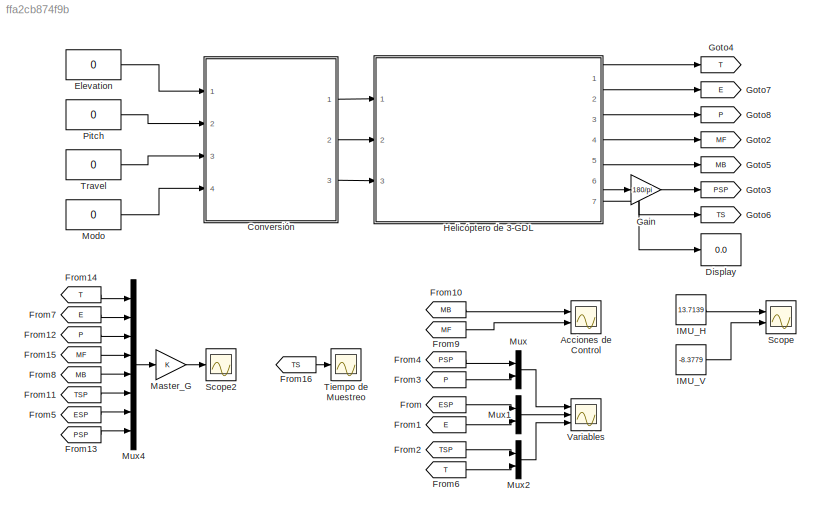
MODEL slx_ffa2cb874f9b
KIND model
CONFIG AbsTol = auto
CONFIG EnableMultiTasking = off
CONFIG FixedStep = 0.009
CONFIG MaxStep = 0.01
CONFIG MinStep = auto
CONFIG RelTol = 1e-3
CONFIG SampleTimeConstraint = Unconstrained
CONFIG SolverName = ode1
CONFIG StartTime = 0.0
CONFIG StopTime = inf
BLOCK [Scope] Acciones de Control
  Floating = off
  NumInputPorts = 2
  Ports = [2]
  ScopeSpecificationString = Simulink.scopes.TimeScopeBlockCfg('CurrentConfiguration', extmgr.ConfigurationSet(extmgr.Configuration('Core','General UI',true),extmgr.Configuration('Core','Source UI',true),extmgr.Configuration('Sources','WiredSimulink',true,'DataLoggingVariableName','CTRL_Actions','DataLogging',true,'DataLoggingSaveFormat','StructureWithTime'),extmgr.Configuration('Visuals','Time Domain',true,'SerializedDisplay...<+1926ch>
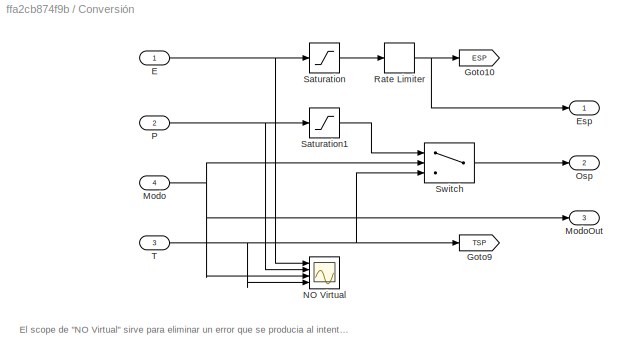
BLOCK [SubSystem] Conversión
  Ports = [4, 3]
  RequestExecContextInheritance = off
BLOCK [Inport] Conversión/E
BLOCK [Outport] Conversión/Esp
BLOCK [Goto] Conversión/Goto10
  GotoTag = ESP
  TagVisibility = global
BLOCK [Goto] Conversión/Goto9
  GotoTag = TSP
  TagVisibility = global
BLOCK [Inport] Conversión/Modo
  Port = 4
BLOCK [Outport] Conversión/ModoOut
  Port = 3
BLOCK [Scope] Conversión/NO Virtual
  Floating = off
  NumInputPorts = 4
  Ports = [4]
  ScopeSpecificationString = Simulink.scopes.TimeScopeBlockCfg('CurrentConfiguration', extmgr.ConfigurationSet(extmgr.Configuration('Core','General UI',true),extmgr.Configuration('Core','Source UI',true),extmgr.Configuration('Sources','WiredSimulink',true,'DataLoggingVariableName','ScopeData1'),extmgr.Configuration('Visuals','Time Domain',true,'SerializedDisplays',{struct('MinYLimReal','-1.00000','MaxYLimReal','1.00000','YLab...<+1560ch>
BLOCK [Outport] Conversión/Osp
  Port = 2
BLOCK [Inport] Conversión/P
  Port = 2
BLOCK [RateLimiter] Conversión/Rate Limiter
  FallingSlewLimit = -8
  RisingSlewLimit = 8
  SampleTimeMode = inherited
BLOCK [Saturate] Conversión/Saturation
  LowerLimit = -28.35
  UpperLimit = 30
BLOCK [Saturate] Conversión/Saturation1
  LowerLimit = -20
  UpperLimit = 20
BLOCK [Switch] Conversión/Switch
  Criteria = u2 ~= 0
  InputSameDT = off
  SaturateOnIntegerOverflow = off
BLOCK [Inport] Conversión/T
  Port = 3
BLOCK [Display] Display
  Decimation = 1
  Ports = [1]
BLOCK [Constant] Elevation
  Value = 0
BLOCK [From] From
  GotoTag = ESP
  TagVisibility = global
BLOCK [From] From1
  GotoTag = E
BLOCK [From] From10
  GotoTag = MB
BLOCK [From] From11
  GotoTag = TSP
  TagVisibility = global
BLOCK [From] From12
  GotoTag = P
BLOCK [From] From13
  GotoTag = PSP
BLOCK [From] From14
  GotoTag = T
BLOCK [From] From15
  GotoTag = MF
BLOCK [From] From16
  GotoTag = TS
BLOCK [From] From2
  GotoTag = TSP
  TagVisibility = global
BLOCK [From] From3
  GotoTag = P
BLOCK [From] From4
  GotoTag = PSP
BLOCK [From] From5
  GotoTag = ESP
  TagVisibility = global
BLOCK [From] From6
  GotoTag = T
BLOCK [From] From7
  GotoTag = E
BLOCK [From] From8
  GotoTag = MB
BLOCK [From] From9
  GotoTag = MF
BLOCK [Gain] Gain
  Gain = 180/pi
BLOCK [Goto] Goto2
  GotoTag = MF
BLOCK [Goto] Goto3
  GotoTag = PSP
BLOCK [Goto] Goto4
  GotoTag = T
BLOCK [Goto] Goto5
  GotoTag = MB
BLOCK [Goto] Goto6
  GotoTag = TS
BLOCK [Goto] Goto7
  GotoTag = E
BLOCK [Goto] Goto8
  GotoTag = P
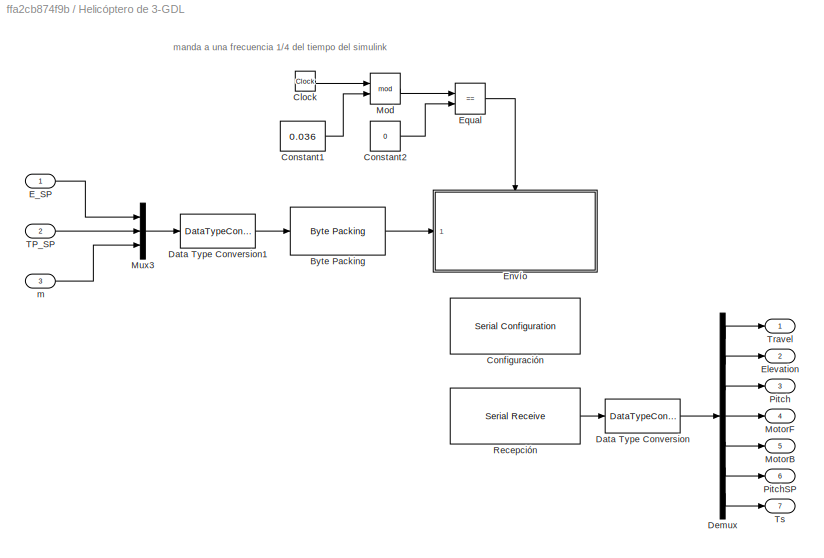
BLOCK [SubSystem] Helicóptero de 3-GDL
  Ports = [3, 7]
  RequestExecContextInheritance = off
BLOCK [Reference] Helicóptero de 3-GDL/Byte Packing  REF=slrealtimeutilitieslib/Byte Packing
  Ports = [1, 1]
  SourceBlock = slrealtimeutilitieslib/Byte Packing
  SourceProductBaseCode = XP
  SourceType = slrealtimebytepacking
BLOCK [Clock] Helicóptero de 3-GDL/Clock
BLOCK [Reference] Helicóptero de 3-GDL/Configuración  REF=instrumentlib/Serial Configuration
  ObjConstructor = serial('<Select a port...>');
  Ports = []
  Priority = -200000
  SourceBlock = instrumentlib/Serial Configuration
  SourceProductBaseCode = IC
  SourceType = matlabshared.seriallib.internal.system.SerialConfiguration
BLOCK [Constant] Helicóptero de 3-GDL/Constant1
  Value = 0.036
BLOCK [Constant] Helicóptero de 3-GDL/Constant2
  Value = 0
BLOCK [DataTypeConversion] Helicóptero de 3-GDL/Data Type Conversion
  OutDataTypeStr = double
  RndMeth = Floor
  SaturateOnIntegerOverflow = off
BLOCK [DataTypeConversion] Helicóptero de 3-GDL/Data Type Conversion1
  OutDataTypeStr = single
  RndMeth = Floor
  SaturateOnIntegerOverflow = off
BLOCK [Demux] Helicóptero de 3-GDL/Demux
  Outputs = 7
  Ports = [1, 7]
BLOCK [Inport] Helicóptero de 3-GDL/E_SP
BLOCK [Outport] Helicóptero de 3-GDL/Elevation
  Port = 2
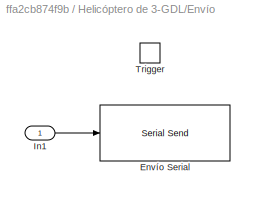
BLOCK [SubSystem] Helicóptero de 3-GDL/Envío
  Ports = [1, 0, 0, 1]
  RequestExecContextInheritance = off
  TreatAsAtomicUnit = on
BLOCK [Reference] Helicóptero de 3-GDL/Envío/Envío Serial  REF=instrumentlib/Serial Send
  ObjConstructor = serial('<Select a port...>');
  Ports = [1]
  Priority = 1
  SourceBlock = instrumentlib/Serial Send
  SourceProductBaseCode = IC
  SourceType = matlabshared.seriallib.internal.system.SerialSend
BLOCK [Inport] Helicóptero de 3-GDL/Envío/In1
BLOCK [TriggerPort] Helicóptero de 3-GDL/Envío/Trigger
  Ports = []
  StatesWhenEnabling = held
  VariantControl = (inherit)
BLOCK [RelationalOperator] Helicóptero de 3-GDL/Equal
  InputSameDT = off
  Operator = ==
  OutDataTypeStr = boolean
  Ports = [2, 1]
  RndMeth = Simplest
BLOCK [Math] Helicóptero de 3-GDL/Mod
  Operator = mod
  Ports = [2, 1]
BLOCK [Outport] Helicóptero de 3-GDL/MotorB
  Port = 5
BLOCK [Outport] Helicóptero de 3-GDL/MotorF
  Port = 4
BLOCK [Mux] Helicóptero de 3-GDL/Mux3
  DisplayOption = bar
  Inputs = 3
  Ports = [3, 1]
BLOCK [Outport] Helicóptero de 3-GDL/Pitch
  Port = 3
BLOCK [Outport] Helicóptero de 3-GDL/PitchSP
  Port = 6
BLOCK [Reference] Helicóptero de 3-GDL/Recepción  REF=instrumentlib/Serial Receive
  ObjConstructor = serial('<Select a port...>');
  Ports = [0, 1]
  Priority = 1
  SourceBlock = instrumentlib/Serial Receive
  SourceProductBaseCode = IC
  SourceType = matlabshared.seriallib.internal.system.SerialReceive
BLOCK [Inport] Helicóptero de 3-GDL/TP_SP
  Port = 2
BLOCK [Outport] Helicóptero de 3-GDL/Travel
BLOCK [Outport] Helicóptero de 3-GDL/Ts
  Port = 7
BLOCK [Inport] Helicóptero de 3-GDL/m
  Port = 3
BLOCK [Constant] IMU_H
  Value = 13.7139
BLOCK [Constant] IMU_V
  Value = -8.3779
BLOCK [Gain] Master_G
BLOCK [Constant] Modo
  Value = 0
BLOCK [Mux] Mux
  DisplayOption = bar
  Inputs = 2
  Ports = [2, 1]
BLOCK [Mux] Mux1
  DisplayOption = bar
  Inputs = 2
  Ports = [2, 1]
BLOCK [Mux] Mux2
  DisplayOption = bar
  Inputs = 2
  Ports = [2, 1]
BLOCK [Mux] Mux4
  DisplayOption = bar
  Inputs = 8
  Ports = [8, 1]
BLOCK [Constant] Pitch
  Value = 0
BLOCK [Scope] Scope
  Floating = off
  NumInputPorts = 2
  Ports = [2]
  ScopeSpecificationString = Simulink.scopes.TimeScopeBlockCfg('CurrentConfiguration', extmgr.ConfigurationSet(extmgr.Configuration('Core','General UI',true),extmgr.Configuration('Core','Source UI',true),extmgr.Configuration('Sources','WiredSimulink',true,'DataLoggingVariableName','IMUDATA','DataLogging',true,'DataLoggingSaveFormat','StructureWithTime'),extmgr.Configuration('Visuals','Time Domain',true,'SerializedDisplays',{s...<+1469ch>
BLOCK [Scope] Scope2
  Floating = off
  NumInputPorts = 1
  Ports = [1]
  ScopeSpecificationString = Simulink.scopes.TimeScopeBlockCfg('CurrentConfiguration', extmgr.ConfigurationSet(extmgr.Configuration('Core','General UI',true),extmgr.Configuration('Core','Source UI',true),extmgr.Configuration('Sources','WiredSimulink',true,'DataLoggingVariableName','ScopeData1'),extmgr.Configuration('Visuals','Time Domain',true,'SerializedDisplays',{struct('MinYLimReal','-12.68632','MaxYLimReal','42.17689','YL...<+1466ch>
BLOCK [Scope] Tiempo de Muestreo
  Floating = off
  NumInputPorts = 1
  Ports = [1]
  ScopeSpecificationString = Simulink.scopes.TimeScopeBlockCfg('CurrentConfiguration', extmgr.ConfigurationSet(extmgr.Configuration('Core','General UI',true),extmgr.Configuration('Core','Source UI',true),extmgr.Configuration('Sources','WiredSimulink',true,'DataLoggingVariableName','ScopeData1'),extmgr.Configuration('Visuals','Time Domain',true,'SerializedDisplays',{struct('MinYLimReal','8667.88021','MaxYLimReal','9018.82118',...<+1580ch>
BLOCK [Constant] Travel
  Value = 0
BLOCK [Scope] Variables
  Floating = off
  NumInputPorts = 3
  Ports = [3]
  ScopeSpecificationString = Simulink.scopes.TimeScopeBlockCfg('CurrentConfiguration', extmgr.ConfigurationSet(extmgr.Configuration('Core','General UI',true),extmgr.Configuration('Core','Source UI',true),extmgr.Configuration('Sources','WiredSimulink',true,'DataLogging',true,'DataLoggingVariableName','Variables','DataLoggingSaveFormat','StructureWithTime'),extmgr.Configuration('Visuals','Time Domain',true,'SerializedDisplays',...<+3047ch>
ANNOTATION Conversión: El scope de "NO Virtual" sirve para eliminar un error que se producia al intentar acceder desde get_param o RTO a las constantes. Les marcaba como objeto virtual y no se podían acceder.
ANNOTATION Helicóptero de 3-GDL: manda a una frecuencia 1/4 del tiempo del simulink
NET Conversión/E:1 -> Conversión/NO Virtual:1, Conversión/Saturation:1
NET Conversión/Modo:1 -> Conversión/ModoOut:1, Conversión/NO Virtual:3, Conversión/Switch:2
NET Conversión/P:1 -> Conversión/NO Virtual:2, Conversión/Saturation1:1
NET Conversión/Rate Limiter:1 -> Conversión/Esp:1, Conversión/Goto10:1
LINE Conversión/Saturation1:1 -> Conversión/Switch:1
LINE Conversión/Saturation:1 -> Conversión/Rate Limiter:1
LINE Conversión/Switch:1 -> Conversión/Osp:1
NET Conversión/T:1 -> Conversión/Goto9:1, Conversión/NO Virtual:4, Conversión/Switch:3
LINE Conversión:1 -> Helicóptero de 3-GDL:1
LINE Conversión:2 -> Helicóptero de 3-GDL:2
LINE Conversión:3 -> Helicóptero de 3-GDL:3
LINE Elevation:1 -> Conversión:1
LINE From10:1 -> Acciones de Control:1
LINE From11:1 -> Mux4:6
LINE From12:1 -> Mux4:3
LINE From13:1 -> Mux4:8
LINE From14:1 -> Mux4:1
LINE From15:1 -> Mux4:4
LINE From16:1 -> Tiempo de Muestreo:1
LINE From1:1 -> Mux1:2
LINE From2:1 -> Mux2:1
LINE From3:1 -> Mux:2
LINE From4:1 -> Mux:1
LINE From5:1 -> Mux4:7
LINE From6:1 -> Mux2:2
LINE From7:1 -> Mux4:2
LINE From8:1 -> Mux4:5
LINE From9:1 -> Acciones de Control:2
LINE From:1 -> Mux1:1
LINE Gain:1 -> Goto3:1
LINE Helicóptero de 3-GDL/Byte Packing:1 -> Helicóptero de 3-GDL/Envío:1
LINE Helicóptero de 3-GDL/Clock:1 -> Helicóptero de 3-GDL/Mod:1
LINE Helicóptero de 3-GDL/Constant1:1 -> Helicóptero de 3-GDL/Mod:2
LINE Helicóptero de 3-GDL/Constant2:1 -> Helicóptero de 3-GDL/Equal:2
LINE Helicóptero de 3-GDL/Data Type Conversion1:1 -> Helicóptero de 3-GDL/Byte Packing:1
LINE Helicóptero de 3-GDL/Data Type Conversion:1 -> Helicóptero de 3-GDL/Demux:1
LINE Helicóptero de 3-GDL/Demux:1 -> Helicóptero de 3-GDL/Travel:1
LINE Helicóptero de 3-GDL/Demux:2 -> Helicóptero de 3-GDL/Elevation:1
LINE Helicóptero de 3-GDL/Demux:3 -> Helicóptero de 3-GDL/Pitch:1
LINE Helicóptero de 3-GDL/Demux:4 -> Helicóptero de 3-GDL/MotorF:1
LINE Helicóptero de 3-GDL/Demux:5 -> Helicóptero de 3-GDL/MotorB:1
LINE Helicóptero de 3-GDL/Demux:6 -> Helicóptero de 3-GDL/PitchSP:1
LINE Helicóptero de 3-GDL/Demux:7 -> Helicóptero de 3-GDL/Ts:1
LINE Helicóptero de 3-GDL/E_SP:1 -> Helicóptero de 3-GDL/Mux3:1
LINE Helicóptero de 3-GDL/Envío/In1:1 -> Helicóptero de 3-GDL/Envío/Envío Serial:1
LINE Helicóptero de 3-GDL/Equal:1 -> Helicóptero de 3-GDL/Envío:trigger
LINE Helicóptero de 3-GDL/Mod:1 -> Helicóptero de 3-GDL/Equal:1
LINE Helicóptero de 3-GDL/Mux3:1 -> Helicóptero de 3-GDL/Data Type Conversion1:1
LINE Helicóptero de 3-GDL/Recepción:1 -> Helicóptero de 3-GDL/Data Type Conversion:1
LINE Helicóptero de 3-GDL/TP_SP:1 -> Helicóptero de 3-GDL/Mux3:2
LINE Helicóptero de 3-GDL/m:1 -> Helicóptero de 3-GDL/Mux3:3
LINE Helicóptero de 3-GDL:1 -> Goto4:1
LINE Helicóptero de 3-GDL:2 -> Goto7:1
LINE Helicóptero de 3-GDL:3 -> Goto8:1
LINE Helicóptero de 3-GDL:4 -> Goto2:1
LINE Helicóptero de 3-GDL:5 -> Goto5:1
LINE Helicóptero de 3-GDL:6 -> Gain:1
NET Helicóptero de 3-GDL:7 -> Display:1, Goto6:1
LINE IMU_H:1 -> Scope:1
LINE IMU_V:1 -> Scope:2
LINE Master_G:1 -> Scope2:1
LINE Modo:1 -> Conversión:4
LINE Mux1:1 -> Variables:2
LINE Mux2:1 -> Variables:3
LINE Mux4:1 -> Master_G:1
LINE Mux:1 -> Variables:1
LINE Pitch:1 -> Conversión:2
LINE Travel:1 -> Conversión:3
note: NET lines group one-source signal fan-out (src -> all destinations, sorted); 1:1 wires keep LINE
